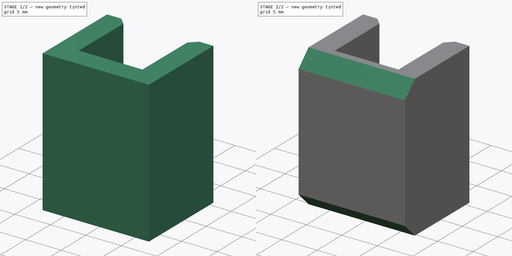
[diagram: build sequence overview — one tinted view per stage of 2, left to right]
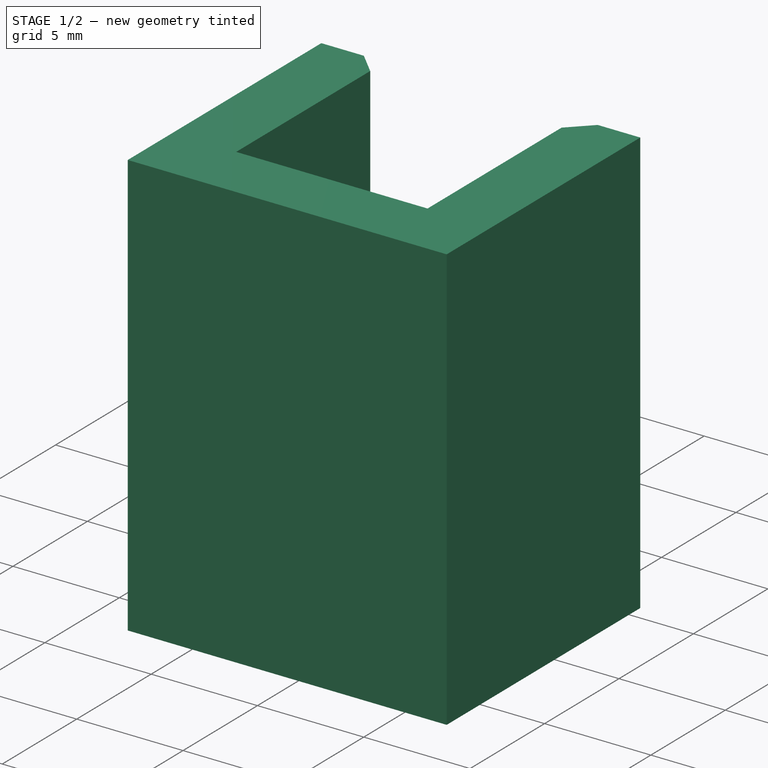
[diagram: stage 1 of 2 — iso view after this stage's code; geometry added in this stage tinted green]
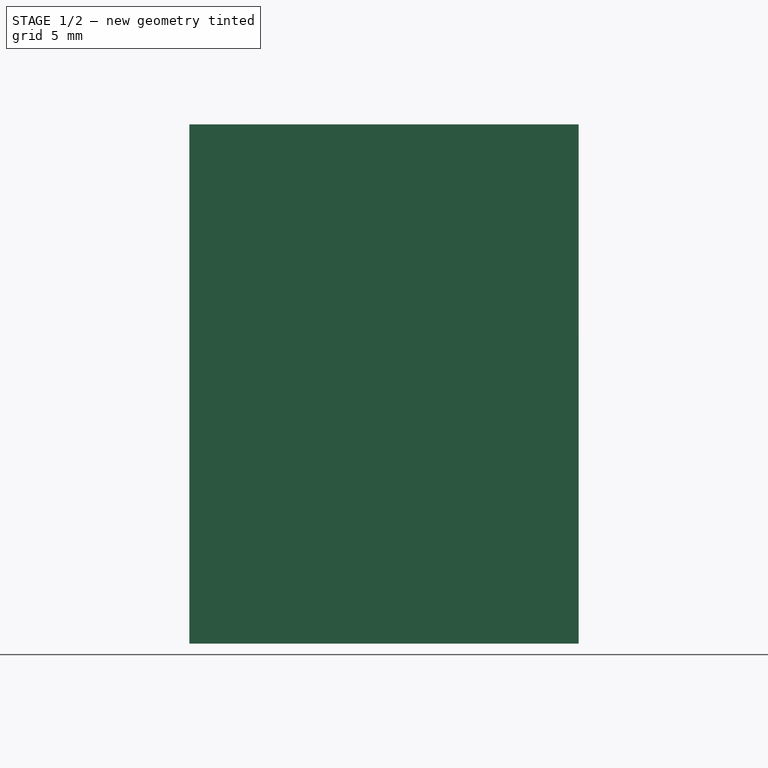
[diagram: stage 1 of 2 — front view after this stage's code; geometry added in this stage tinted green]
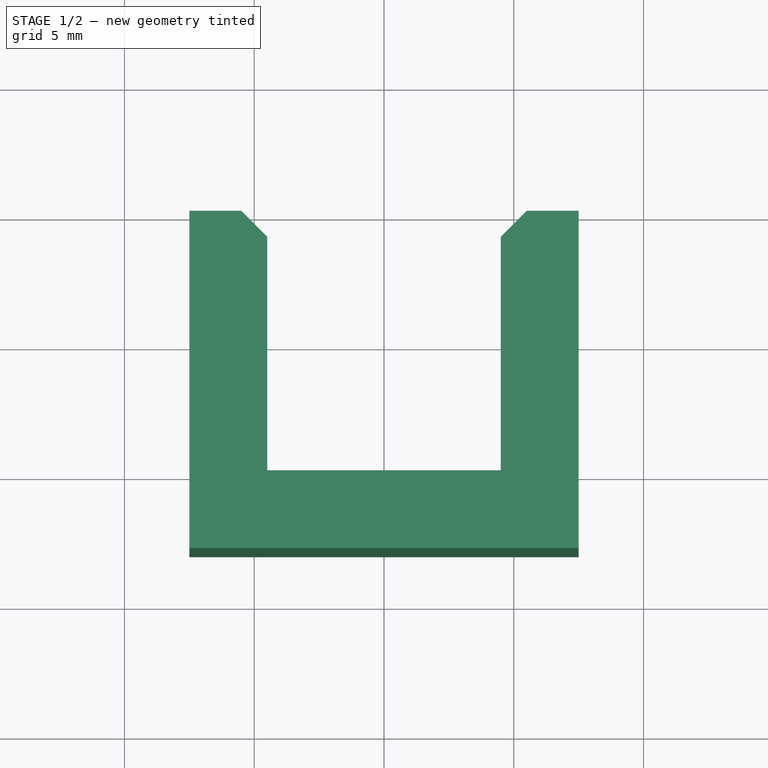
[diagram: stage 1 of 2 — top view after this stage's code; geometry added in this stage tinted green]
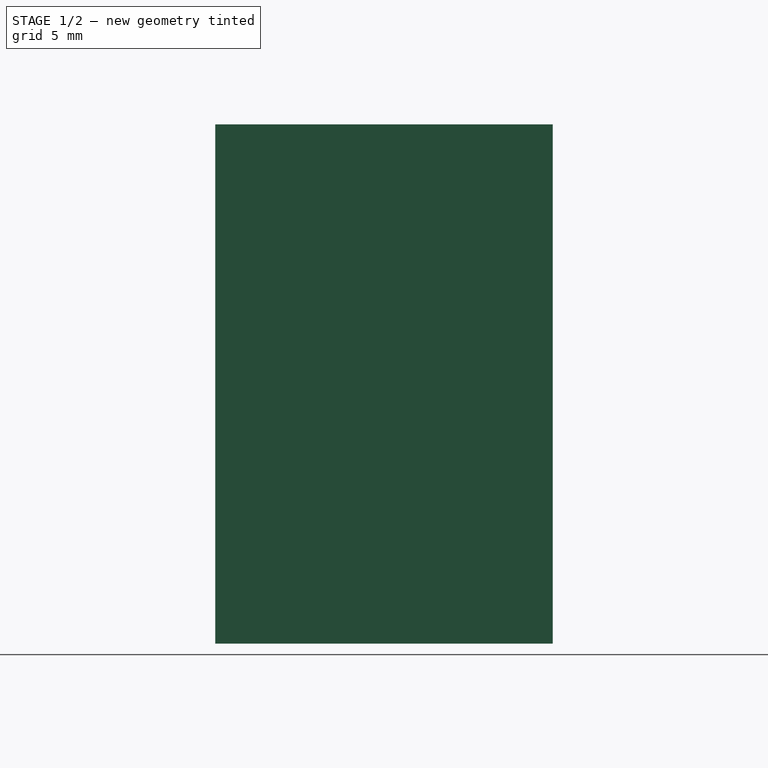
[diagram: stage 1 of 2 — right view after this stage's code; geometry added in this stage tinted green]
FCSTD DOCUMENT  (FreeCAD 0.17R13634 (Git))
Label: HornClipper V2
License: All rights reserved
LicenseURL: http://en.wikipedia.org/wiki/All_rights_reserved
objects: PartDesign::Chamfer×2, Sketcher::SketchObject×1, PartDesign::Pad×1, PartDesign::Body×1
note: 6 computed .brp shape members not serialized (recipe doc carries the construction recipe); baked Part::Feature solids carry a one-line shape summary decoded from their .brp

FEATURE [Sketcher::SketchObject] Sketch
  MapMode = 5
  Support = -> [XY_Plane]
  sketch-geometry (10):
    g0: LineSegment StartX=-7.5 StartY=5 StartZ=0 EndX=-7.5 EndY=-8 EndZ=0
    g1: LineSegment StartX=-7.5 StartY=-8 StartZ=0 EndX=7.5 EndY=-8 EndZ=0
    g2: LineSegment StartX=7.5 StartY=-8 StartZ=0 EndX=7.5 EndY=5 EndZ=0
    g3: LineSegment StartX=7.5 StartY=5 StartZ=0 EndX=4.5 EndY=5 EndZ=0
    g4: LineSegment StartX=4.5 StartY=5 StartZ=0 EndX=4.5 EndY=-5 EndZ=0
    g5: LineSegment StartX=4.5 StartY=-5 StartZ=0 EndX=-4.5 EndY=-5 EndZ=0
    g6: LineSegment StartX=-4.5 StartY=-5 StartZ=0 EndX=-4.5 EndY=5 EndZ=0
    g7: LineSegment StartX=-4.5 StartY=5 StartZ=0 EndX=-7.5 EndY=5 EndZ=0
    g8: LineSegment [constr] StartX=0 StartY=0 StartZ=0 EndX=4.5 EndY=-5 EndZ=0
    g9: LineSegment [constr] StartX=4.5 StartY=5 StartZ=0 EndX=0 EndY=0 EndZ=0
  constraints (27):
    c: Vertical(g0)
    c: Coincident(g0,g1)
    c: Horizontal(g1)
    c: Coincident(g1,g2)
    c: Vertical(g2)
    c: Coincident(g2,g3)
    c: Horizontal(g3)
    c: Coincident(g3,g4)
    c: Vertical(g4)
    c: Coincident(g4,g5)
    c: Horizontal(g5)
    c: Coincident(g5,g6)
    c: Vertical(g6)
    c: Coincident(g6,g7)
    c: Coincident(g7,g0)
    c: Horizontal(g7)
    c: Symmetric(g6,g3,g-2)
    c: Symmetric(g0,g1,g-2)
    c: Distance(g5) = 9
    c: Distance(g7) = 3
    c: Distance(g4) = 10
    c: DistanceY(g0,g5) = 3
    c: Coincident(g8,g-1)
    c: Coincident(g8,g4)
    c: Coincident(g9,g3)
    c: Coincident(g9,g-1)
    c: Equal(g9,g8)
FEATURE [PartDesign::Pad] Pad
  Length = 20
  Length2 = 100
  Profile = -> Sketch
  Type = 0
FEATURE [PartDesign::Chamfer] Chamfer
  Base = -> Pad [Edge20,Edge11]
  BaseFeature = -> Pad
  Size = 1
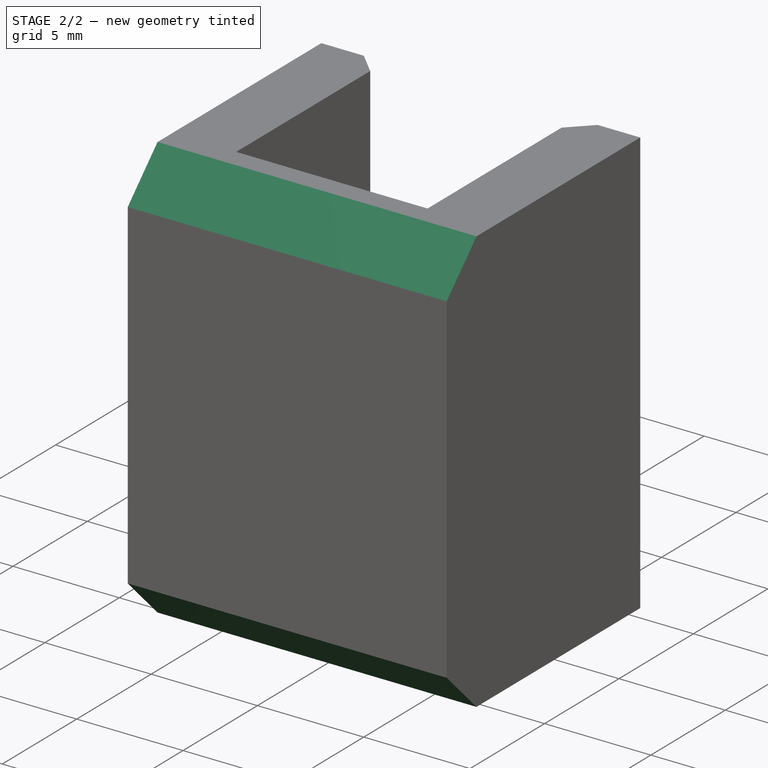
[diagram: stage 2 of 2 — iso view after this stage's code; geometry added in this stage tinted green]
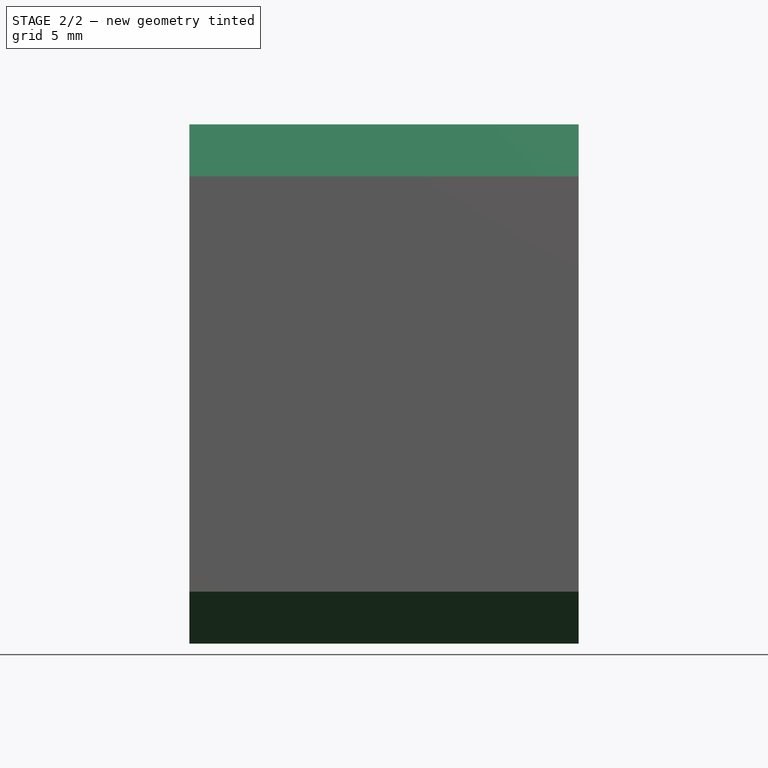
[diagram: stage 2 of 2 — front view after this stage's code; geometry added in this stage tinted green]
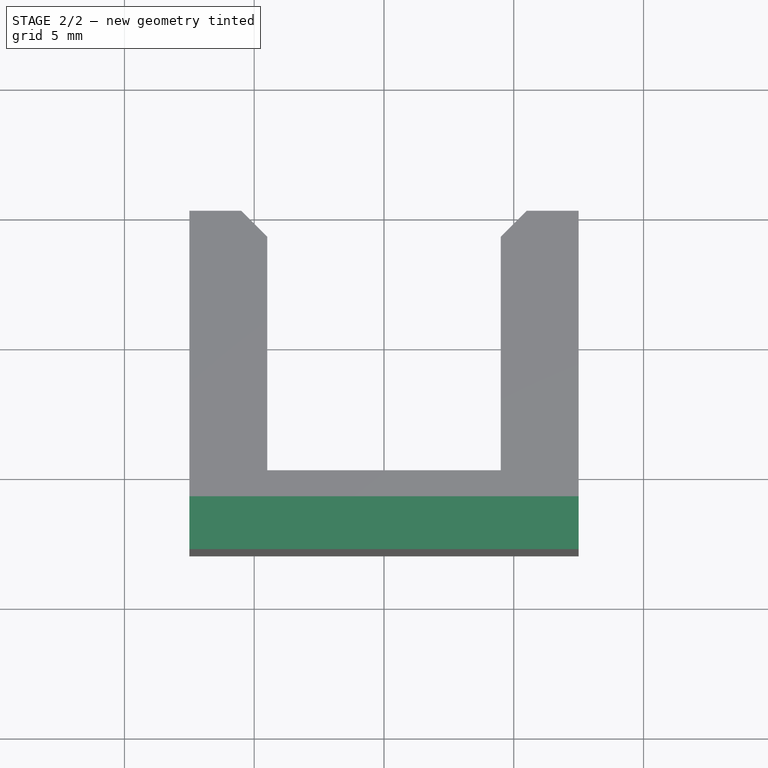
[diagram: stage 2 of 2 — top view after this stage's code; geometry added in this stage tinted green]
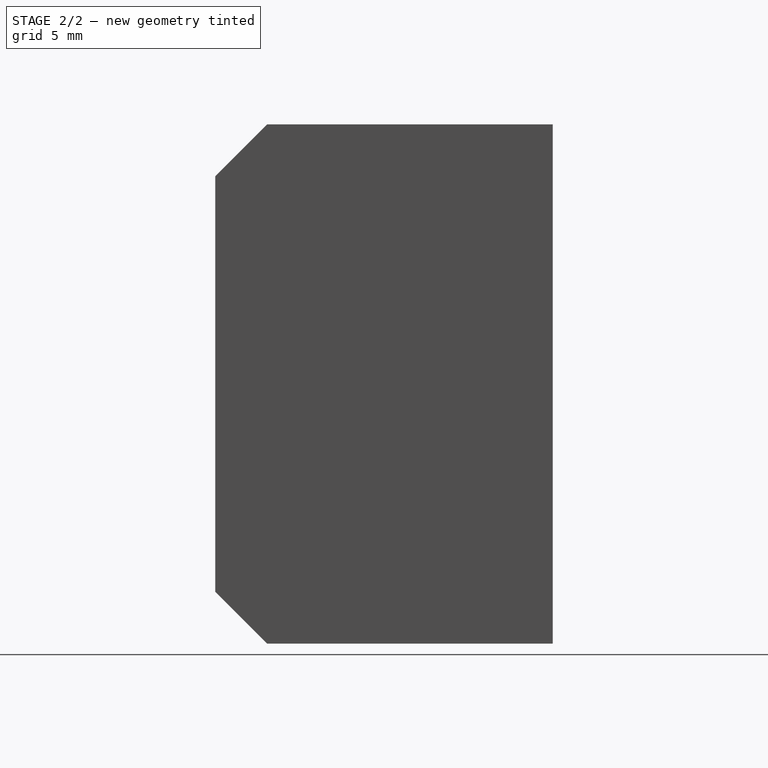
[diagram: stage 2 of 2 — right view after this stage's code; geometry added in this stage tinted green]
FEATURE [PartDesign::Chamfer] Chamfer001
  Base = -> Chamfer [Edge19,Edge8]
  BaseFeature = -> Chamfer
  Size = 2
FEATURE [PartDesign::Body] Body  label="UProfile"
  Group = -> [Sketch,Pad,Chamfer,Chamfer001]
  Origin = -> Origin
  Tip = -> Chamfer001
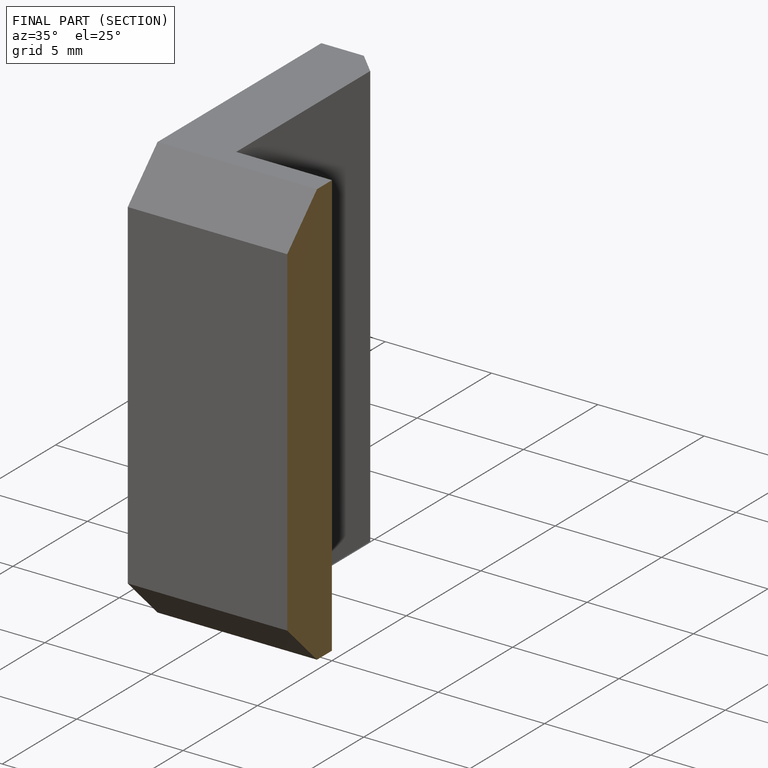
[diagram: finished part — half-section view (interior)]
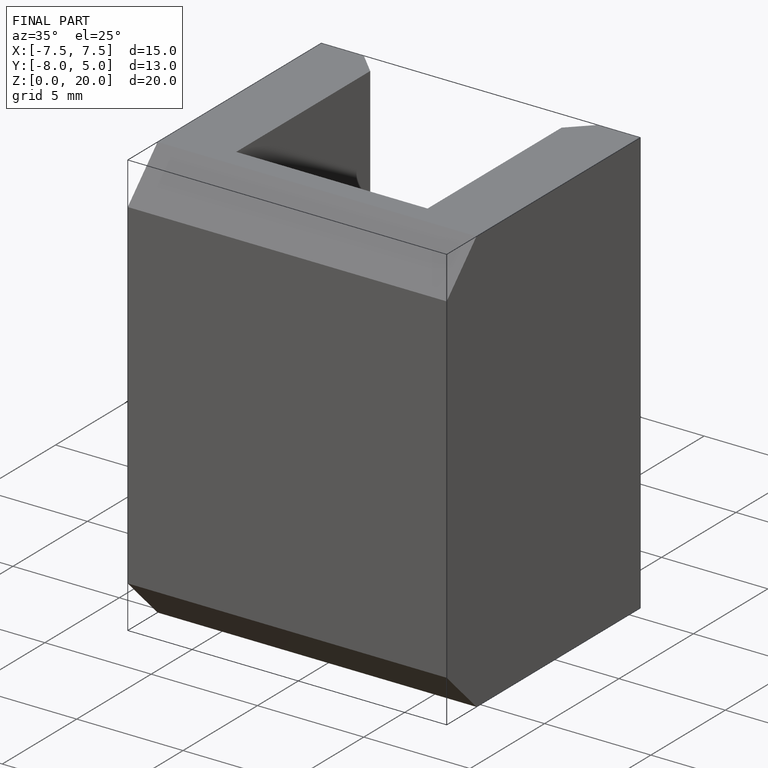
[diagram: finished part — iso view with bounding-box wireframe]
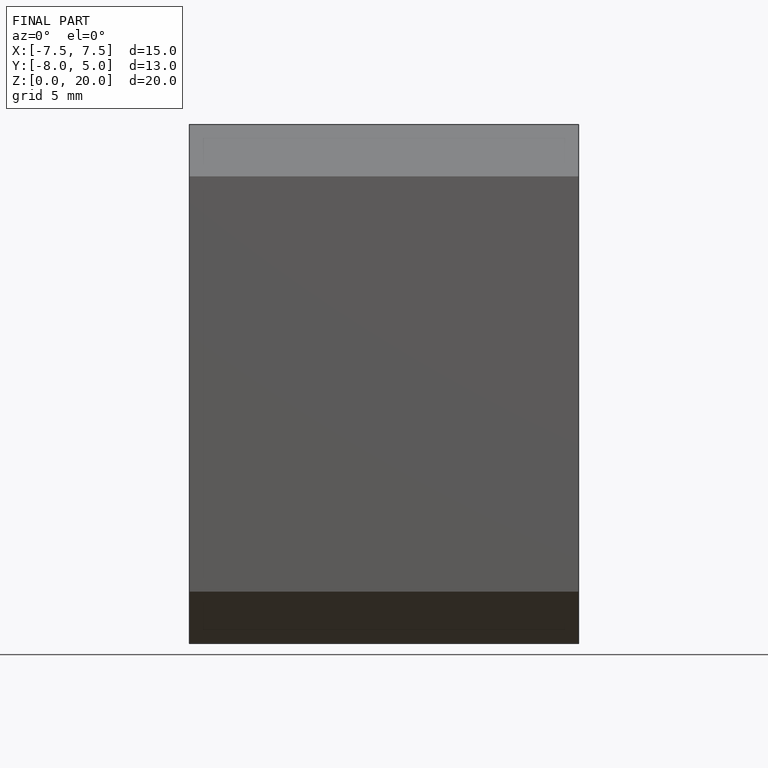
[diagram: finished part — front view with bounding-box wireframe]
